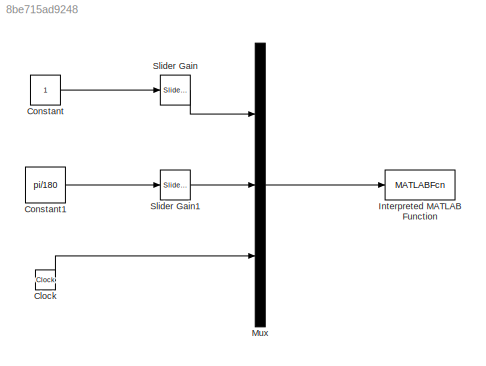
MODEL slx_8be715ad9248
KIND model
CONFIG AbsTol = auto
CONFIG EnableMultiTasking = off
CONFIG FixedStep = auto
CONFIG MaxStep = auto
CONFIG MinStep = auto
CONFIG RelTol = 1e-3
CONFIG SampleTimeConstraint = Unconstrained
CONFIG SolverName = VariableStepAuto
CONFIG StartTime = 0.0
CONFIG StopTime = 10.0
BLOCK [Clock] Clock
BLOCK [Constant] Constant
BLOCK [Constant] Constant1
  Value = pi/180
BLOCK [MATLABFcn] Interpreted MATLAB Function
  MATLABFcn = drawPendulum(u)
  OutputDimensions = 0
BLOCK [Mux] Mux
  DisplayOption = bar
  Inputs = 3
BLOCK [Reference] Slider Gain  REF=simulink/Math
Operations/Slider
Gain
  SourceBlock = simulink/Math\nOperations/Slider\nGain
  SourceType = Slider Gain
BLOCK [Reference] Slider Gain1  REF=simulink/Math
Operations/Slider
Gain
  SourceBlock = simulink/Math\nOperations/Slider\nGain
  SourceType = Slider Gain
LINE Clock:1 -> Mux:3
LINE Constant1:1 -> Slider Gain1:1
LINE Constant:1 -> Slider Gain:1
LINE Mux:1 -> Interpreted MATLAB Function:1
LINE Slider Gain1:1 -> Mux:2
LINE Slider Gain:1 -> Mux:1
